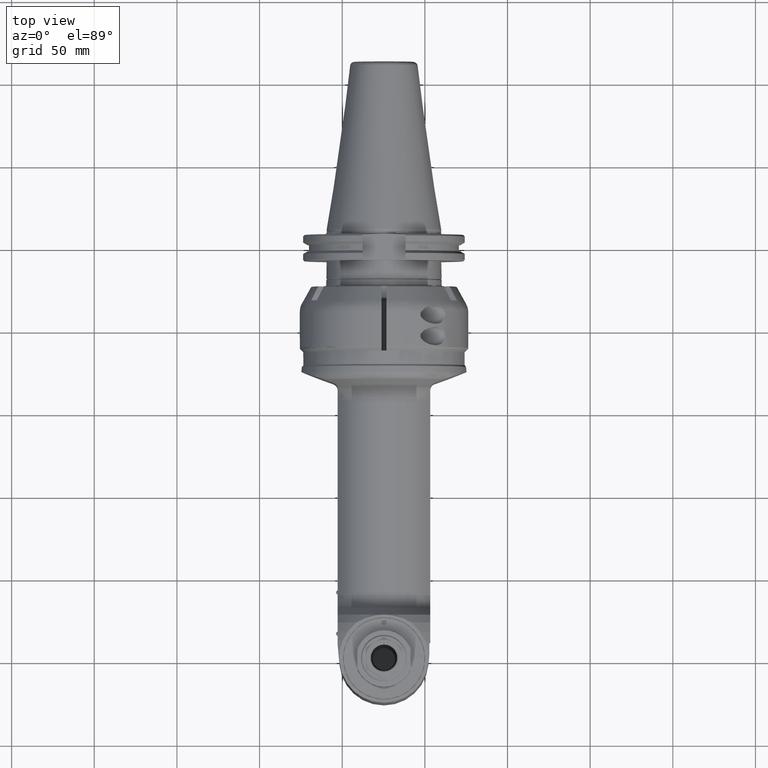
[diagram: clean part render]
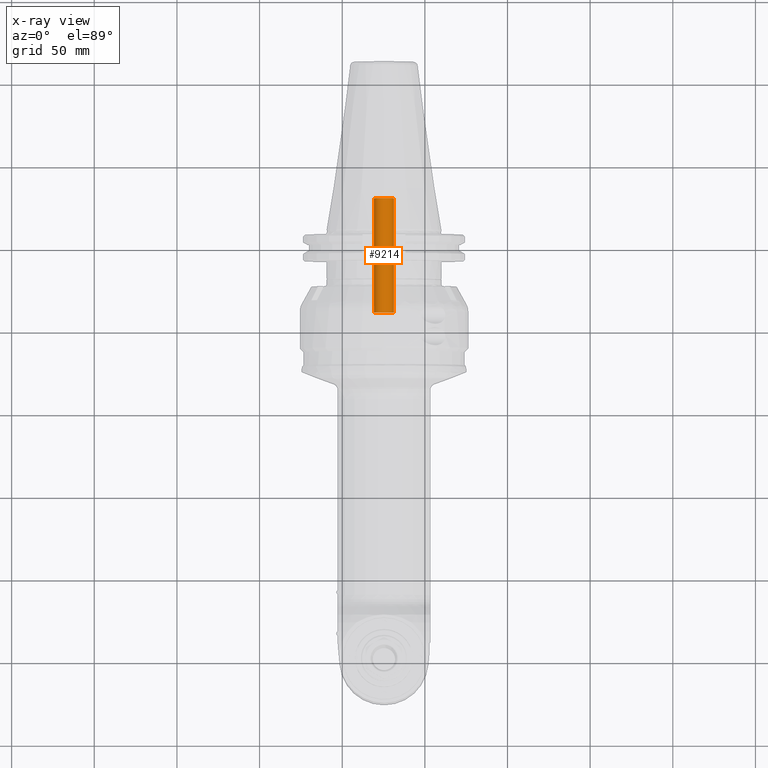
[diagram: x-ray — body ghosted, one internal face saturated and labeled with its STEP entity id]
A machine part, top view, then the same camera in x-ray: the body is ghosted and one INTERNAL B-rep face — a face not visible from any outside direction — is saturated and labeled: STEP entity #9214.
In plain terms, the highlighted cylindrical surface (bore or boss wall) has radius 6 mm, axis along (0, 1, 0).
Its self-contained STEP definition (entity closure, byte-faithful):
#757=LINE('',#15992,#1355);
#1355=VECTOR('',#12411,6.);
#1681=CYLINDRICAL_SURFACE('',#10195,6.);
#2384=FACE_OUTER_BOUND('',#2989,.T.);
#2989=EDGE_LOOP('',(#7756,#7757,#7758,#7759,#7760));
#3609=CIRCLE('',#10191,6.);
#3611=CIRCLE('',#10193,6.);
#3612=CIRCLE('',#10196,6.);
#4347=VERTEX_POINT('',#15981);
#4348=VERTEX_POINT('',#15982);
#4350=VERTEX_POINT('',#15990);
#5537=EDGE_CURVE('',#4347,#4348,#3609,.T.);
#5540=EDGE_CURVE('',#4348,#4347,#3611,.T.);
#5541=EDGE_CURVE('',#4350,#4350,#3612,.T.);
#5542=EDGE_CURVE('',#4350,#4347,#757,.T.);
#7756=ORIENTED_EDGE('',*,*,#5541,.T.);
#7757=ORIENTED_EDGE('',*,*,#5542,.T.);
#7758=ORIENTED_EDGE('',*,*,#5540,.F.);
#7759=ORIENTED_EDGE('',*,*,#5537,.F.);
#7760=ORIENTED_EDGE('',*,*,#5542,.F.);
#9214=ADVANCED_FACE('',(#2384),#1681,.T.);
#10191=AXIS2_PLACEMENT_3D('',#15983,#12398,#12399);
#10193=AXIS2_PLACEMENT_3D('',#15987,#12403,#12404);
#10195=AXIS2_PLACEMENT_3D('',#15989,#12407,#12408);
#10196=AXIS2_PLACEMENT_3D('',#15991,#12409,#12410);
#12398=DIRECTION('center_axis',(0.,-1.,0.));
#12399=DIRECTION('ref_axis',(1.,0.,0.));
#12403=DIRECTION('center_axis',(0.,-1.,0.));
#12404=DIRECTION('ref_axis',(1.,0.,0.));
#12407=DIRECTION('center_axis',(0.,1.,0.));
#12408=DIRECTION('ref_axis',(1.,0.,0.));
#12409=DIRECTION('center_axis',(0.,-1.,0.));
#12410=DIRECTION('ref_axis',(-1.,0.,0.));
#12411=DIRECTION('',(0.,-1.,0.));
#15981=CARTESIAN_POINT('',(-6.,23.975,0.));
#15982=CARTESIAN_POINT('',(7.34788079488228E-16,23.9750000000015,5.9999999999985));
#15983=CARTESIAN_POINT('Origin',(0.,23.975,0.));
#15987=CARTESIAN_POINT('Origin',(0.,23.975,0.));
#15989=CARTESIAN_POINT('Origin',(0.,19.,0.));
#15990=CARTESIAN_POINT('',(-6.,93.1,7.34788079488412E-16));
#15991=CARTESIAN_POINT('Origin',(0.,93.1,0.));
#15992=CARTESIAN_POINT('',(-6.,19.,7.34788079488412E-16));